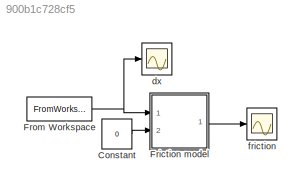
MODEL slx_900b1c728cf5
KIND model
CONFIG AbsTol = auto
CONFIG EnableMultiTasking = off
CONFIG FixedStep = auto
CONFIG MaxStep = auto
CONFIG MinStep = auto
CONFIG RelTol = 1e-3
CONFIG SampleTimeConstraint = Unconstrained
CONFIG Solver = VariableStepAuto
CONFIG SolverName = VariableStepAuto
CONFIG StartTime = 0.0
CONFIG StopTime = 20
BLOCK [Constant] Constant
  Value = 0
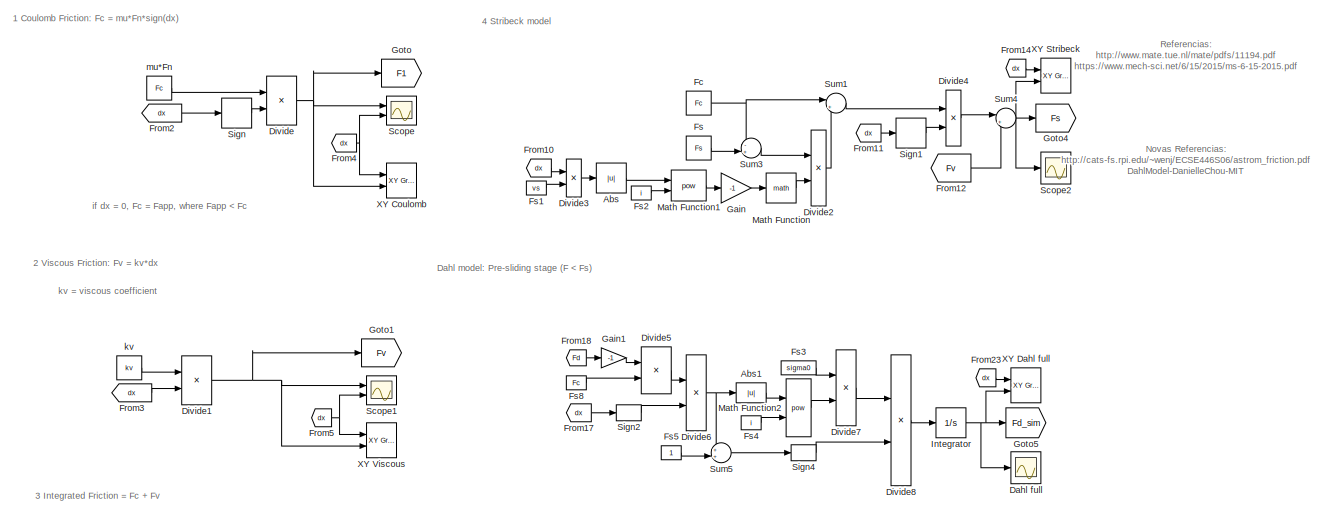
[diagram: Friction model - part 1/2, full width, top band]
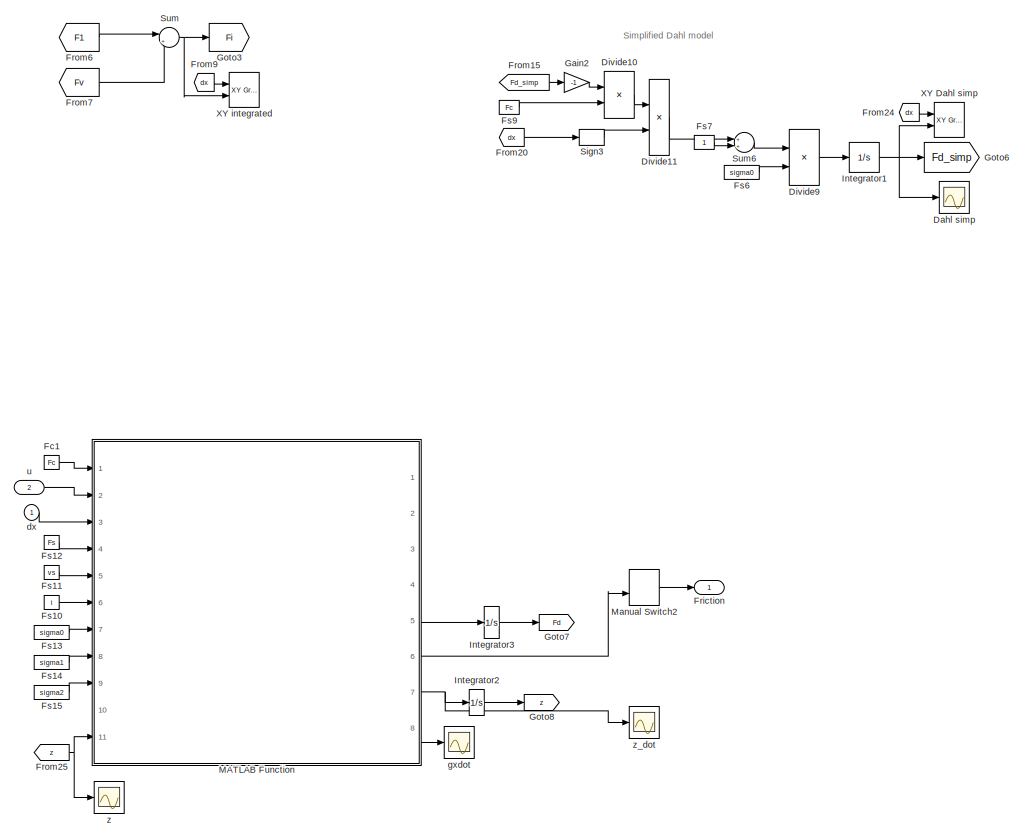
[diagram: Friction model - part 2/2, full width, bottom band]
BLOCK [SubSystem] Friction model
  Ports = [2, 1]
  RequestExecContextInheritance = off
  Variant = off
BLOCK [Abs] Friction model/Abs
  Commented = on
  SaturateOnIntegerOverflow = off
BLOCK [Abs] Friction model/Abs1
  Commented = on
  SaturateOnIntegerOverflow = off
BLOCK [Scope] Friction model/Dahl full
  Commented = on
  NumInputPorts = 1
  Ports = [1]
  ScopeSpecificationString = Simulink.scopes.TimeScopeBlockCfg('CurrentConfiguration', extmgr.ConfigurationSet(extmgr.Configuration('Core','General UI',true),extmgr.Configuration('Core','Source UI',true),extmgr.Configuration('Sources','WiredSimulink',true,'DataLoggingVariableName','ScopeData5'),extmgr.Configuration('Visuals','Time Domain',true,'SerializedDisplays',{struct('MinYLimReal','2.00000','MaxYLimReal','4.00000','YLabe...<+1397ch>
BLOCK [Scope] Friction model/Dahl simp
  Commented = on
  NumInputPorts = 1
  Ports = [1]
  ScopeSpecificationString = Simulink.scopes.TimeScopeBlockCfg('CurrentConfiguration', extmgr.ConfigurationSet(extmgr.Configuration('Core','General UI',true),extmgr.Configuration('Core','Source UI',true),extmgr.Configuration('Sources','WiredSimulink',true,'DataLoggingVariableName','ScopeData6'),extmgr.Configuration('Visuals','Time Domain',true,'SerializedDisplays',{struct('MinYLimReal','2.12965','MaxYLimReal','10.83312','YLab...<+1400ch>
BLOCK [Product] Friction model/Divide
  Commented = on
  InputSameDT = off
  Inputs = **
  OutDataTypeStr = Inherit: Inherit via internal rule
  Ports = [2, 1]
  RndMeth = Floor
  SaturateOnIntegerOverflow = off
BLOCK [Product] Friction model/Divide1
  Commented = on
  InputSameDT = off
  Inputs = **
  OutDataTypeStr = Inherit: Inherit via internal rule
  Ports = [2, 1]
  RndMeth = Floor
  SaturateOnIntegerOverflow = off
BLOCK [Product] Friction model/Divide10
  Commented = on
  InputSameDT = off
  Inputs = */
  OutDataTypeStr = Inherit: Inherit via internal rule
  Ports = [2, 1]
  RndMeth = Floor
  SaturateOnIntegerOverflow = off
BLOCK [Product] Friction model/Divide11
  Commented = on
  InputSameDT = off
  Inputs = **
  OutDataTypeStr = Inherit: Inherit via internal rule
  Ports = [2, 1]
  RndMeth = Floor
  SaturateOnIntegerOverflow = off
BLOCK [Product] Friction model/Divide2
  Commented = on
  InputSameDT = off
  Inputs = **
  OutDataTypeStr = Inherit: Inherit via internal rule
  Ports = [2, 1]
  RndMeth = Floor
  SaturateOnIntegerOverflow = off
BLOCK [Product] Friction model/Divide3
  Commented = on
  InputSameDT = off
  Inputs = */
  OutDataTypeStr = Inherit: Inherit via internal rule
  Ports = [2, 1]
  RndMeth = Floor
  SaturateOnIntegerOverflow = off
BLOCK [Product] Friction model/Divide4
  Commented = on
  InputSameDT = off
  Inputs = **
  OutDataTypeStr = Inherit: Inherit via internal rule
  Ports = [2, 1]
  RndMeth = Floor
  SaturateOnIntegerOverflow = off
BLOCK [Product] Friction model/Divide5
  Commented = on
  InputSameDT = off
  Inputs = */
  OutDataTypeStr = Inherit: Inherit via internal rule
  Ports = [2, 1]
  RndMeth = Floor
  SaturateOnIntegerOverflow = off
BLOCK [Product] Friction model/Divide6
  Commented = on
  InputSameDT = off
  Inputs = **
  OutDataTypeStr = Inherit: Inherit via internal rule
  Ports = [2, 1]
  RndMeth = Floor
  SaturateOnIntegerOverflow = off
BLOCK [Product] Friction model/Divide7
  Commented = on
  InputSameDT = off
  Inputs = **
  OutDataTypeStr = Inherit: Inherit via internal rule
  Ports = [2, 1]
  RndMeth = Floor
  SaturateOnIntegerOverflow = off
BLOCK [Product] Friction model/Divide8
  Commented = on
  InputSameDT = off
  Inputs = **
  OutDataTypeStr = Inherit: Inherit via internal rule
  Ports = [2, 1]
  RndMeth = Floor
  SaturateOnIntegerOverflow = off
BLOCK [Product] Friction model/Divide9
  Commented = on
  InputSameDT = off
  Inputs = **
  OutDataTypeStr = Inherit: Inherit via internal rule
  Ports = [2, 1]
  RndMeth = Floor
  SaturateOnIntegerOverflow = off
BLOCK [Constant] Friction model/Fc
  Commented = on
  Value = Fc
BLOCK [Constant] Friction model/Fc1
  Value = Fc
BLOCK [Outport] Friction model/Friction
  IconDisplay = Port number
BLOCK [From] Friction model/From10
  Commented = on
  GotoTag = dx
BLOCK [From] Friction model/From11
  Commented = on
  GotoTag = dx
BLOCK [From] Friction model/From12
  Commented = on
  GotoTag = Fv
BLOCK [From] Friction model/From14
  Commented = on
  GotoTag = dx
BLOCK [From] Friction model/From15
  Commented = on
  GotoTag = Fd_simp
BLOCK [From] Friction model/From17
  Commented = on
  GotoTag = dx
BLOCK [From] Friction model/From18
  Commented = on
  GotoTag = Fd
BLOCK [From] Friction model/From2
  Commented = on
  GotoTag = dx
BLOCK [From] Friction model/From20
  Commented = on
  GotoTag = dx
BLOCK [From] Friction model/From23
  Commented = on
  GotoTag = dx
BLOCK [From] Friction model/From24
  Commented = on
  GotoTag = dx
BLOCK [From] Friction model/From25
  GotoTag = z
BLOCK [From] Friction model/From3
  Commented = on
  GotoTag = dx
BLOCK [From] Friction model/From4
  Commented = on
  GotoTag = dx
BLOCK [From] Friction model/From5
  Commented = on
  GotoTag = dx
BLOCK [From] Friction model/From6
  Commented = on
  GotoTag = F1
BLOCK [From] Friction model/From7
  Commented = on
  GotoTag = Fv
BLOCK [From] Friction model/From9
  Commented = on
  GotoTag = dx
BLOCK [Constant] Friction model/Fs
  Commented = on
  Value = Fs
BLOCK [Constant] Friction model/Fs1
  Commented = on
  Value = vs
BLOCK [Constant] Friction model/Fs10
  Value = i
BLOCK [Constant] Friction model/Fs11
  Value = vs
BLOCK [Constant] Friction model/Fs12
  Value = Fs
BLOCK [Constant] Friction model/Fs13
  Value = sigma0
BLOCK [Constant] Friction model/Fs14
  Value = sigma1
BLOCK [Constant] Friction model/Fs15
  Value = sigma2
BLOCK [Constant] Friction model/Fs2
  Commented = on
  Value = i
BLOCK [Constant] Friction model/Fs3
  Commented = on
  Value = sigma0
BLOCK [Constant] Friction model/Fs4
  Commented = on
  Value = i
BLOCK [Constant] Friction model/Fs5
  Commented = on
BLOCK [Constant] Friction model/Fs6
  Commented = on
  Value = sigma0
BLOCK [Constant] Friction model/Fs7
  Commented = on
BLOCK [Constant] Friction model/Fs8
  Commented = on
  Value = Fc
BLOCK [Constant] Friction model/Fs9
  Commented = on
  Value = Fc
BLOCK [Gain] Friction model/Gain
  Commented = on
  Gain = -1
  OutDataTypeStr = Inherit: Inherit via internal rule
  ParamDataTypeStr = Inherit: Inherit via internal rule
  SaturateOnIntegerOverflow = off
BLOCK [Gain] Friction model/Gain1
  Commented = on
  Gain = -1
  OutDataTypeStr = Inherit: Inherit via internal rule
  ParamDataTypeStr = Inherit: Inherit via internal rule
  SaturateOnIntegerOverflow = off
BLOCK [Gain] Friction model/Gain2
  Commented = on
  Gain = -1
  OutDataTypeStr = Inherit: Inherit via internal rule
  ParamDataTypeStr = Inherit: Inherit via internal rule
  SaturateOnIntegerOverflow = off
BLOCK [Goto] Friction model/Goto
  Commented = on
  GotoTag = F1
BLOCK [Goto] Friction model/Goto1
  Commented = on
  GotoTag = Fv
BLOCK [Goto] Friction model/Goto3
  Commented = on
  GotoTag = Fi
BLOCK [Goto] Friction model/Goto4
  Commented = on
  GotoTag = Fs
BLOCK [Goto] Friction model/Goto5
  Commented = on
  GotoTag = Fd_sim
BLOCK [Goto] Friction model/Goto6
  Commented = on
  GotoTag = Fd_simp
BLOCK [Goto] Friction model/Goto7
  Commented = on
  GotoTag = Fd
BLOCK [Goto] Friction model/Goto8
  GotoTag = z
BLOCK [Integrator] Friction model/Integrator
  Commented = on
  InitialCondition = Fc
  Ports = [1, 1]
BLOCK [Integrator] Friction model/Integrator1
  Commented = on
  InitialCondition = Fc
  Ports = [1, 1]
BLOCK [Integrator] Friction model/Integrator2
  Ports = [1, 1]
BLOCK [Integrator] Friction model/Integrator3
  Commented = on
  Ports = [1, 1]
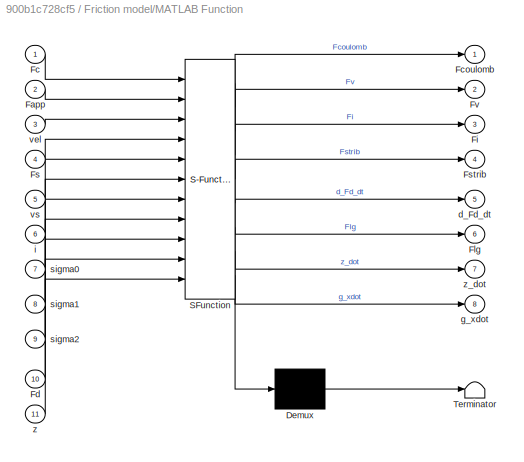
BLOCK [SubSystem] Friction model/MATLAB Function
  ErrorFcn = Stateflow.Translate.translate
  PermitHierarchicalResolution = ExplicitOnly
  Ports = [11, 8]
  RequestExecContextInheritance = off
  SFBlockType = MATLAB Function
  TreatAsAtomicUnit = on
  Variant = off
BLOCK [Demux] Friction model/MATLAB Function/ Demux 
  Outputs = 1
  Ports = [1, 1]
BLOCK [S-Function] Friction model/MATLAB Function/ SFunction 
  EnableBusSupport = on
  FunctionName = sf_sfun
  PortCounts = [11 9]
  Ports = [11, 9]
  SFcnIsStateOwnerBlock = off
  SFunctionDeploymentMode = off
  Tag = Stateflow S-Function friction_logData 2
BLOCK [Terminator] Friction model/MATLAB Function/ Terminator 
BLOCK [Inport] Friction model/MATLAB Function/Fapp
  IconDisplay = Port number
  Port = 2
BLOCK [Inport] Friction model/MATLAB Function/Fc
  IconDisplay = Port number
BLOCK [Outport] Friction model/MATLAB Function/Fcoulomb
  IconDisplay = Port number
BLOCK [Inport] Friction model/MATLAB Function/Fd
  IconDisplay = Port number
  Port = 10
BLOCK [Outport] Friction model/MATLAB Function/Fi
  IconDisplay = Port number
  Port = 3
BLOCK [Outport] Friction model/MATLAB Function/Flg
  IconDisplay = Port number
  Port = 6
BLOCK [Inport] Friction model/MATLAB Function/Fs
  IconDisplay = Port number
  Port = 4
BLOCK [Outport] Friction model/MATLAB Function/Fstrib
  IconDisplay = Port number
  Port = 4
BLOCK [Outport] Friction model/MATLAB Function/Fv
  IconDisplay = Port number
  Port = 2
BLOCK [Outport] Friction model/MATLAB Function/d_Fd_dt
  IconDisplay = Port number
  Port = 5
BLOCK [Outport] Friction model/MATLAB Function/g_xdot
  IconDisplay = Port number
  Port = 8
BLOCK [Inport] Friction model/MATLAB Function/i
  IconDisplay = Port number
  Port = 6
BLOCK [Inport] Friction model/MATLAB Function/sigma0
  IconDisplay = Port number
  Port = 7
BLOCK [Inport] Friction model/MATLAB Function/sigma1
  IconDisplay = Port number
  Port = 8
BLOCK [Inport] Friction model/MATLAB Function/sigma2
  IconDisplay = Port number
  Port = 9
BLOCK [Inport] Friction model/MATLAB Function/vel
  IconDisplay = Port number
  Port = 3
BLOCK [Inport] Friction model/MATLAB Function/vs
  IconDisplay = Port number
  Port = 5
BLOCK [Inport] Friction model/MATLAB Function/z
  IconDisplay = Port number
  Port = 11
BLOCK [Outport] Friction model/MATLAB Function/z_dot
  IconDisplay = Port number
  Port = 7
BLOCK [ManualSwitch] Friction model/Manual Switch2
  CurrentSetting = 0
BLOCK [Math] Friction model/Math Function
  Commented = on
  Ports = [1, 1]
BLOCK [Math] Friction model/Math Function1
  Commented = on
  Operator = pow
  Ports = [2, 1]
BLOCK [Math] Friction model/Math Function2
  Commented = on
  Operator = pow
  Ports = [2, 1]
BLOCK [Scope] Friction model/Scope
  Commented = on
  NumInputPorts = 2
  Ports = [2]
  ScopeSpecificationString = Simulink.scopes.TimeScopeBlockCfg('CurrentConfiguration', extmgr.ConfigurationSet(extmgr.Configuration('Core','General UI',true),extmgr.Configuration('Core','Source UI',true),extmgr.Configuration('Sources','WiredSimulink',true,'DataLoggingVariableName','ScopeData1'),extmgr.Configuration('Visuals','Time Domain',true,'SerializedDisplays',{struct('MinYLimReal','-3.75','MaxYLimReal','3.75','YLabelReal...<+1400ch>
BLOCK [Scope] Friction model/Scope1
  Commented = on
  NumInputPorts = 2
  Ports = [2]
  ScopeSpecificationString = Simulink.scopes.TimeScopeBlockCfg('CurrentConfiguration', extmgr.ConfigurationSet(extmgr.Configuration('Core','General UI',true),extmgr.Configuration('Core','Source UI',true),extmgr.Configuration('Sources','WiredSimulink',true,'DataLoggingVariableName','ScopeData1'),extmgr.Configuration('Visuals','Time Domain',true,'SerializedDisplays',{struct('MinYLimReal','-12.5','MaxYLimReal','12.5','YLabelReal...<+1381ch>
BLOCK [Scope] Friction model/Scope2
  Commented = on
  NumInputPorts = 1
  Ports = [1]
  ScopeSpecificationString = Simulink.scopes.TimeScopeBlockCfg('CurrentConfiguration', extmgr.ConfigurationSet(extmgr.Configuration('Core','General UI',true),extmgr.Configuration('Core','Source UI',true),extmgr.Configuration('Sources','WiredSimulink',true,'DataLoggingVariableName','ScopeData1'),extmgr.Configuration('Visuals','Time Domain',true,'SerializedDisplays',{struct('MinYLimReal','-15.95965','MaxYLimReal','14.73886','YL...<+1398ch>
BLOCK [Signum] Friction model/Sign
  Commented = on
BLOCK [Signum] Friction model/Sign1
  Commented = on
BLOCK [Signum] Friction model/Sign2
  Commented = on
BLOCK [Signum] Friction model/Sign3
  Commented = on
BLOCK [Signum] Friction model/Sign4
  Commented = on
BLOCK [Sum] Friction model/Sum
  Commented = on
  IconShape = round
  InputSameDT = off
  Inputs = |++
  OutDataTypeStr = Inherit: Inherit via internal rule
  Ports = [2, 1]
  SaturateOnIntegerOverflow = off
BLOCK [Sum] Friction model/Sum1
  Commented = on
  IconShape = round
  InputSameDT = off
  Inputs = |++
  OutDataTypeStr = Inherit: Inherit via internal rule
  Ports = [2, 1]
  SaturateOnIntegerOverflow = off
BLOCK [Sum] Friction model/Sum3
  Commented = on
  IconShape = round
  InputSameDT = off
  Inputs = -+|
  OutDataTypeStr = Inherit: Inherit via internal rule
  Ports = [2, 1]
  SaturateOnIntegerOverflow = off
BLOCK [Sum] Friction model/Sum4
  Commented = on
  IconShape = round
  InputSameDT = off
  Inputs = |++
  OutDataTypeStr = Inherit: Inherit via internal rule
  Ports = [2, 1]
  SaturateOnIntegerOverflow = off
BLOCK [Sum] Friction model/Sum5
  Commented = on
  IconShape = round
  InputSameDT = off
  Inputs = ++|
  OutDataTypeStr = Inherit: Inherit via internal rule
  Ports = [2, 1]
  SaturateOnIntegerOverflow = off
BLOCK [Sum] Friction model/Sum6
  Commented = on
  IconShape = round
  InputSameDT = off
  Inputs = ++|
  OutDataTypeStr = Inherit: Inherit via internal rule
  Ports = [2, 1]
  SaturateOnIntegerOverflow = off
BLOCK [Reference] Friction model/XY Coulomb  REF=simulink/Sinks/XY Graph
  Commented = on
  Ports = [2]
  SourceBlock = simulink/Sinks/XY Graph
  SourceProductBaseCode = SL
  SourceProductName = Simulink
  SourceType = XY scope.
BLOCK [Reference] Friction model/XY Dahl full  REF=simulink/Sinks/XY Graph
  Commented = on
  Ports = [2]
  SourceBlock = simulink/Sinks/XY Graph
  SourceProductBaseCode = SL
  SourceProductName = Simulink
  SourceType = XY scope.
BLOCK [Reference] Friction model/XY Dahl simp  REF=simulink/Sinks/XY Graph
  Commented = on
  Ports = [2]
  SourceBlock = simulink/Sinks/XY Graph
  SourceProductBaseCode = SL
  SourceProductName = Simulink
  SourceType = XY scope.
BLOCK [Reference] Friction model/XY Stribeck  REF=simulink/Sinks/XY Graph
  Commented = on
  Ports = [2]
  SourceBlock = simulink/Sinks/XY Graph
  SourceProductBaseCode = SL
  SourceProductName = Simulink
  SourceType = XY scope.
BLOCK [Reference] Friction model/XY Viscous  REF=simulink/Sinks/XY Graph
  Commented = on
  Ports = [2]
  SourceBlock = simulink/Sinks/XY Graph
  SourceProductBaseCode = SL
  SourceProductName = Simulink
  SourceType = XY scope.
BLOCK [Reference] Friction model/XY integrated  REF=simulink/Sinks/XY Graph
  Commented = on
  Ports = [2]
  SourceBlock = simulink/Sinks/XY Graph
  SourceProductBaseCode = SL
  SourceProductName = Simulink
  SourceType = XY scope.
BLOCK [Inport] Friction model/dx
  IconDisplay = Port number
BLOCK [Scope] Friction model/gxdot
  NumInputPorts = 1
  Ports = [1]
  ScopeSpecificationString = Simulink.scopes.TimeScopeBlockCfg('CurrentConfiguration', extmgr.ConfigurationSet(extmgr.Configuration('Core','General UI',true),extmgr.Configuration('Core','Source UI',true),extmgr.Configuration('Sources','WiredSimulink',true,'DataLoggingVariableName','ScopeData2'),extmgr.Configuration('Visuals','Time Domain',true,'SerializedDisplays',{struct('MinYLimReal','0.64591','MaxYLimReal','0.70601','YLabe...<+1452ch>
BLOCK [Constant] Friction model/kv
  Commented = on
  Value = kv
BLOCK [Constant] Friction model/mu*Fn
  Commented = on
  Value = Fc
BLOCK [Inport] Friction model/u
  IconDisplay = Port number
  Port = 2
BLOCK [Scope] Friction model/z
  NumInputPorts = 1
  Ports = [1]
  ScopeSpecificationString = Simulink.scopes.TimeScopeBlockCfg('CurrentConfiguration', extmgr.ConfigurationSet(extmgr.Configuration('Core','General UI',true),extmgr.Configuration('Core','Source UI',true),extmgr.Configuration('Sources','WiredSimulink',true,'DataLoggingVariableName','ScopeData4'),extmgr.Configuration('Visuals','Time Domain',true,'SerializedDisplays',{struct('MinYLimReal','-0.0000009','MaxYLimReal','0.0000082','...<+1459ch>
BLOCK [Scope] Friction model/z_dot
  NumInputPorts = 1
  Ports = [1]
  ScopeSpecificationString = Simulink.scopes.TimeScopeBlockCfg('CurrentConfiguration', extmgr.ConfigurationSet(extmgr.Configuration('Core','General UI',true),extmgr.Configuration('Core','Source UI',true),extmgr.Configuration('Sources','WiredSimulink',true,'DataLoggingVariableName','ScopeData3'),extmgr.Configuration('Visuals','Time Domain',true,'SerializedDisplays',{struct('MinYLimReal','-0.00503','MaxYLimReal','0.00522','YLab...<+1453ch>
BLOCK [FromWorkspace] From Workspace
  SampleTime = 0
  VariableName = input_fr
  ZeroCross = on
BLOCK [Scope] dx
  NumInputPorts = 1
  Ports = [1]
  ScopeSpecificationString = Simulink.scopes.TimeScopeBlockCfg('CurrentConfiguration', extmgr.ConfigurationSet(extmgr.Configuration('Core','General UI',true),extmgr.Configuration('Core','Source UI',true),extmgr.Configuration('Sources','WiredSimulink',true,'DataLoggingVariableName','ScopeData1'),extmgr.Configuration('Visuals','Time Domain',true,'SerializedDisplays',{struct('MinYLimReal','-0.666','MaxYLimReal','0.76326','YLabel...<+1457ch>
BLOCK [Scope] friction
  NumInputPorts = 1
  Ports = [1]
  ScopeSpecificationString = Simulink.scopes.TimeScopeBlockCfg('CurrentConfiguration', extmgr.ConfigurationSet(extmgr.Configuration('Core','General UI',true),extmgr.Configuration('Core','Source UI',true),extmgr.Configuration('Sources','WiredSimulink',true,'DataLoggingVariableName','ScopeData2'),extmgr.Configuration('Visuals','Time Domain',true,'SerializedDisplays',{struct('MinYLimReal','-0.39109','MaxYLimReal','3.51983','YLab...<+1445ch>
ANNOTATION Friction model: 1 Coulomb Friction: Fc = mu*Fn*sign(dx)
ANNOTATION Friction model: 2 Viscous Friction: Fv = kv*dx
ANNOTATION Friction model: 3 Integrated Friction = Fc + Fv
ANNOTATION Friction model: 4 Stribeck model
ANNOTATION Friction model: Simplified Dahl model
ANNOTATION Friction model: Dahl model: Pre-sliding stage (F < Fs)
ANNOTATION Friction model: Novas Referencias: http://cats-fs.rpi.edu/~wenj/ECSE446S06/astrom_friction.pdf DahlModel-DanielleChou-MIT
ANNOTATION Friction model: Referencias: http://www.mate.tue.nl/mate/pdfs/11194.pdf https://www.mech-sci.net/6/15/2015/ms-6-15-2015.pdf
ANNOTATION Friction model: if dx = 0, Fc = Fapp, where Fapp < Fc
ANNOTATION Friction model: kv = viscous coefficient
LINE Constant:1 -> Friction model:2
LINE Friction model/Abs1:1 -> Friction model/Math Function2:1
LINE Friction model/Abs:1 -> Friction model/Math Function1:1
LINE Friction model/Divide10:1 -> Friction model/Divide11:1
LINE Friction model/Divide11:1 -> Friction model/Sum6:1
NET Friction model/Divide1:1 -> Friction model/Goto1:1, Friction model/Scope1:1, Friction model/XY Viscous:2
LINE Friction model/Divide2:1 -> Friction model/Sum1:2
LINE Friction model/Divide3:1 -> Friction model/Abs:1
LINE Friction model/Divide4:1 -> Friction model/Sum4:1
LINE Friction model/Divide5:1 -> Friction model/Divide6:1
NET Friction model/Divide6:1 -> Friction model/Abs1:1, Friction model/Sum5:1
LINE Friction model/Divide7:1 -> Friction model/Divide8:1
LINE Friction model/Divide8:1 -> Friction model/Integrator:1
LINE Friction model/Divide9:1 -> Friction model/Integrator1:1
NET Friction model/Divide:1 -> Friction model/Goto:1, Friction model/Scope:1, Friction model/XY Coulomb:2
LINE Friction model/Fc1:1 -> Friction model/MATLAB Function:1
NET Friction model/Fc:1 -> Friction model/Sum1:1, Friction model/Sum3:1
LINE Friction model/From10:1 -> Friction model/Divide3:1
LINE Friction model/From11:1 -> Friction model/Sign1:1
LINE Friction model/From12:1 -> Friction model/Sum4:2
LINE Friction model/From14:1 -> Friction model/XY Stribeck:1
LINE Friction model/From15:1 -> Friction model/Gain2:1
LINE Friction model/From17:1 -> Friction model/Sign2:1
LINE Friction model/From18:1 -> Friction model/Gain1:1
LINE Friction model/From20:1 -> Friction model/Sign3:1
LINE Friction model/From23:1 -> Friction model/XY Dahl full:1
LINE Friction model/From24:1 -> Friction model/XY Dahl simp:1
NET Friction model/From25:1 -> Friction model/MATLAB Function:11, Friction model/z:1
LINE Friction model/From2:1 -> Friction model/Sign:1
LINE Friction model/From3:1 -> Friction model/Divide1:2
NET Friction model/From4:1 -> Friction model/Scope:2, Friction model/XY Coulomb:1
NET Friction model/From5:1 -> Friction model/Scope1:2, Friction model/XY Viscous:1
LINE Friction model/From6:1 -> Friction model/Sum:1
LINE Friction model/From7:1 -> Friction model/Sum:2
LINE Friction model/From9:1 -> Friction model/XY integrated:1
LINE Friction model/Fs10:1 -> Friction model/MATLAB Function:6
LINE Friction model/Fs11:1 -> Friction model/MATLAB Function:5
LINE Friction model/Fs12:1 -> Friction model/MATLAB Function:4
LINE Friction model/Fs13:1 -> Friction model/MATLAB Function:7
LINE Friction model/Fs14:1 -> Friction model/MATLAB Function:8
LINE Friction model/Fs15:1 -> Friction model/MATLAB Function:9
LINE Friction model/Fs1:1 -> Friction model/Divide3:2
LINE Friction model/Fs2:1 -> Friction model/Math Function1:2
LINE Friction model/Fs3:1 -> Friction model/Divide7:1
LINE Friction model/Fs4:1 -> Friction model/Math Function2:2
LINE Friction model/Fs5:1 -> Friction model/Sum5:2
LINE Friction model/Fs6:1 -> Friction model/Divide9:2
LINE Friction model/Fs7:1 -> Friction model/Sum6:2
LINE Friction model/Fs8:1 -> Friction model/Divide5:2
LINE Friction model/Fs9:1 -> Friction model/Divide10:2
LINE Friction model/Fs:1 -> Friction model/Sum3:2
LINE Friction model/Gain1:1 -> Friction model/Divide5:1
LINE Friction model/Gain2:1 -> Friction model/Divide10:1
LINE Friction model/Gain:1 -> Friction model/Math Function:1
NET Friction model/Integrator1:1 -> Friction model/Dahl simp:1, Friction model/Goto6:1, Friction model/XY Dahl simp:2
LINE Friction model/Integrator2:1 -> Friction model/Goto8:1
LINE Friction model/Integrator3:1 -> Friction model/Goto7:1
NET Friction model/Integrator:1 -> Friction model/Dahl full:1, Friction model/Goto5:1, Friction model/XY Dahl full:2
LINE Friction model/MATLAB Function:5 -> Friction model/Integrator3:1
LINE Friction model/MATLAB Function:6 -> Friction model/Manual Switch2:2
NET Friction model/MATLAB Function:7 -> Friction model/Integrator2:1, Friction model/z_dot:1
LINE Friction model/MATLAB Function:8 -> Friction model/gxdot:1
LINE Friction model/Manual Switch2:1 -> Friction model/Friction:1
LINE Friction model/Math Function1:1 -> Friction model/Gain:1
LINE Friction model/Math Function2:1 -> Friction model/Divide7:2
LINE Friction model/Math Function:1 -> Friction model/Divide2:2
LINE Friction model/Sign1:1 -> Friction model/Divide4:2
LINE Friction model/Sign2:1 -> Friction model/Divide6:2
LINE Friction model/Sign3:1 -> Friction model/Divide11:2
LINE Friction model/Sign4:1 -> Friction model/Divide8:2
LINE Friction model/Sign:1 -> Friction model/Divide:2
LINE Friction model/Sum1:1 -> Friction model/Divide4:1
LINE Friction model/Sum3:1 -> Friction model/Divide2:1
NET Friction model/Sum4:1 -> Friction model/Goto4:1, Friction model/Scope2:1, Friction model/XY Stribeck:2
LINE Friction model/Sum5:1 -> Friction model/Sign4:1
LINE Friction model/Sum6:1 -> Friction model/Divide9:1
NET Friction model/Sum:1 -> Friction model/Goto3:1, Friction model/XY integrated:2
LINE Friction model/dx:1 -> Friction model/MATLAB Function:3
LINE Friction model/kv:1 -> Friction model/Divide1:1
LINE Friction model/mu*Fn:1 -> Friction model/Divide:1
LINE Friction model/u:1 -> Friction model/MATLAB Function:2
LINE Friction model:1 -> friction:1
NET From Workspace:1 -> Friction model:1, dx:1
note: NET lines group one-source signal fan-out (src -> all destinations, sorted); 1:1 wires keep LINE
CHART Friction model/MATLAB Function states=1 transitions=1
  STATE_LABEL 'eML_blk_kernel()'
  STATE_LABEL 'SCRIPT:\n%% Function with friction models\n\nfunction [Fcoulomb ,Fv ,Fi ,Fstrib ,d_Fd_dt ,Flg ,z_dot,g_xdot] = friction(Fc ,Fapp ,vel ,Fs ,vs ,i ,sigma0 ,sigma1 ,sigma2 ,Fd ,z)\n\n%% Coulomb Friction and Viscous Friction\nif vel ~= 0\n    Fcoulomb = Fc*sign(vel);\n    Fv = sigma2*vel + Fcoulomb;\nelseif abs(Fapp) < Fs\n    Fcoulomb = Fapp;\n    Fv = Fcoulomb;\nelse %v == 0 && abs(Fapp) >= Fs\n    Fcoulomb = Fc...<+1209ch>'
